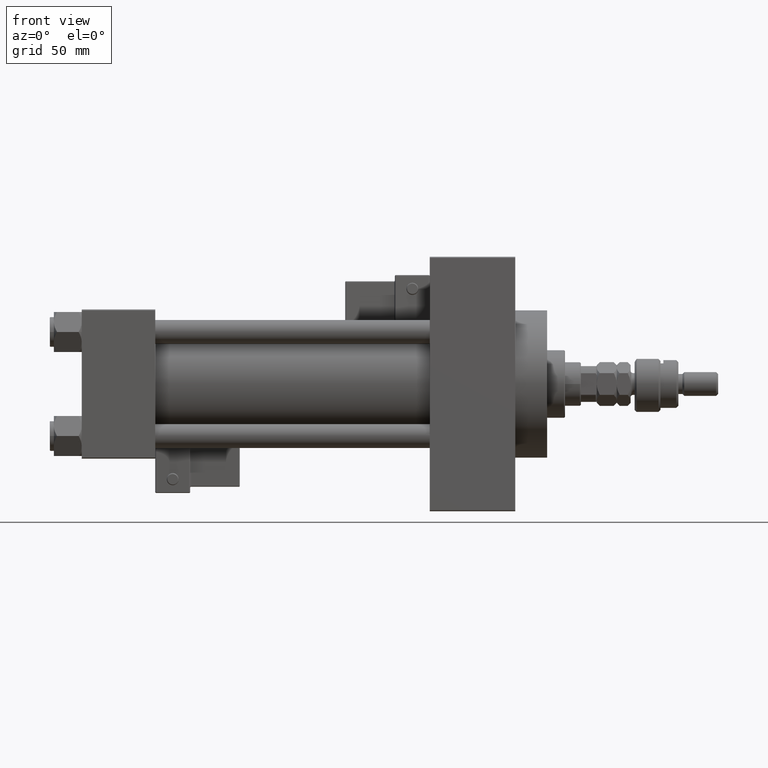
[diagram: clean part render]
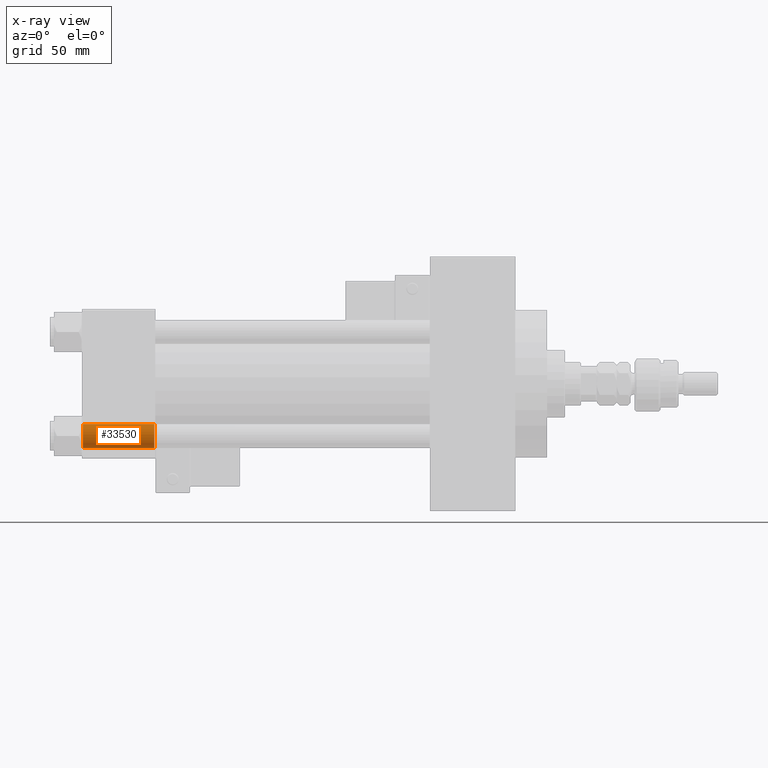
[diagram: x-ray — body ghosted, one internal face saturated and labeled with its STEP entity id]
A machine part, front view, then the same camera in x-ray: the body is ghosted and one INTERNAL B-rep face — a face not visible from any outside direction — is saturated and labeled: STEP entity #33530.
In plain terms, the highlighted cylindrical surface (edge-blend (fillet) strip) has radius 6 mm, axis along (-1, -0, -0).
Its self-contained STEP definition (entity closure, byte-faithful):
#119 = ORIENTED_EDGE ( 'NONE', *, *, #858, .T. ) ;
#675 = DIRECTION ( 'NONE',  ( -1.000000000000000000, -0.000000000000000000, -0.000000000000000000 ) ) ;
#680 = CARTESIAN_POINT ( 'NONE',  ( 37.00000000000000711, 26.14999999999999858, -32.15000000000000568 ) ) ;
#858 = EDGE_CURVE ( 'NONE', #23286, #28643, #49506, .T. ) ;
#1103 = EDGE_LOOP ( 'NONE', ( #119, #40161, #23945, #29946 ) ) ;
#6020 = VECTOR ( 'NONE', #36754, 1000.000000000000000 ) ;
#7971 = CARTESIAN_POINT ( 'NONE',  ( 0.5000000000000213163, 26.14999999999999858, -20.15000000000000213 ) ) ;
#8210 = CARTESIAN_POINT ( 'NONE',  ( 36.50000000000003553, 26.14999999999999858, -26.15000000000000213 ) ) ;
#9006 = DIRECTION ( 'NONE',  ( 0.000000000000000000, 0.000000000000000000, 1.000000000000000000 ) ) ;
#10268 = VERTEX_POINT ( 'NONE', #7971 ) ;
#10806 = AXIS2_PLACEMENT_3D ( 'NONE', #26477, #46138, #14295 ) ;
#11241 = CARTESIAN_POINT ( 'NONE',  ( 36.50000000000003553, 26.14999999999999858, -32.15000000000000568 ) ) ;
#12765 = CARTESIAN_POINT ( 'NONE',  ( 37.00000000000000711, 26.14999999999999858, -20.15000000000000213 ) ) ;
#13142 = FACE_OUTER_BOUND ( 'NONE', #1103, .T. ) ;
#14295 = DIRECTION ( 'NONE',  ( 0.000000000000000000, 0.000000000000000000, 1.000000000000000000 ) ) ;
#14406 = EDGE_CURVE ( 'NONE', #23286, #10268, #44608, .T. ) ;
#16850 = DIRECTION ( 'NONE',  ( 0.000000000000000000, 0.000000000000000000, 1.000000000000000000 ) ) ;
#23286 = VERTEX_POINT ( 'NONE', #39178 ) ;
#23945 = ORIENTED_EDGE ( 'NONE', *, *, #32042, .T. ) ;
#26477 = CARTESIAN_POINT ( 'NONE',  ( 0.5000000000000213163, 26.14999999999999858, -26.15000000000000213 ) ) ;
#27598 = VECTOR ( 'NONE', #52275, 1000.000000000000000 ) ;
#28382 = EDGE_CURVE ( 'NONE', #28643, #36443, #29046, .T. ) ;
#28513 = CARTESIAN_POINT ( 'NONE',  ( 37.00000000000000711, 26.14999999999999858, -26.15000000000000213 ) ) ;
#28643 = VERTEX_POINT ( 'NONE', #11241 ) ;
#29046 = LINE ( 'NONE', #680, #6020 ) ;
#29946 = ORIENTED_EDGE ( 'NONE', *, *, #14406, .F. ) ;
#31111 = CIRCLE ( 'NONE', #10806, 6.000000000000001776 ) ;
#32042 = EDGE_CURVE ( 'NONE', #36443, #10268, #31111, .T. ) ;
#33530 = ADVANCED_FACE ( 'NONE', ( #13142 ), #49221, .F. ) ;
#34564 = AXIS2_PLACEMENT_3D ( 'NONE', #28513, #675, #16850 ) ;
#36443 = VERTEX_POINT ( 'NONE', #52408 ) ;
#36754 = DIRECTION ( 'NONE',  ( -1.000000000000000000, -0.000000000000000000, -0.000000000000000000 ) ) ;
#39178 = CARTESIAN_POINT ( 'NONE',  ( 36.50000000000003553, 26.14999999999999858, -20.15000000000000213 ) ) ;
#40161 = ORIENTED_EDGE ( 'NONE', *, *, #28382, .T. ) ;
#40307 = DIRECTION ( 'NONE',  ( 1.000000000000000000, -0.000000000000000000, -0.000000000000000000 ) ) ;
#44608 = LINE ( 'NONE', #12765, #27598 ) ;
#46138 = DIRECTION ( 'NONE',  ( -1.000000000000000000, 0.000000000000000000, 0.000000000000000000 ) ) ;
#48677 = AXIS2_PLACEMENT_3D ( 'NONE', #8210, #40307, #9006 ) ;
#49221 = CYLINDRICAL_SURFACE ( 'NONE', #34564, 6.000000000000001776 ) ;
#49506 = CIRCLE ( 'NONE', #48677, 6.000000000000001776 ) ;
#52275 = DIRECTION ( 'NONE',  ( -1.000000000000000000, -0.000000000000000000, -0.000000000000000000 ) ) ;
#52408 = CARTESIAN_POINT ( 'NONE',  ( 0.5000000000000213163, 26.14999999999999858, -32.15000000000000568 ) ) ;